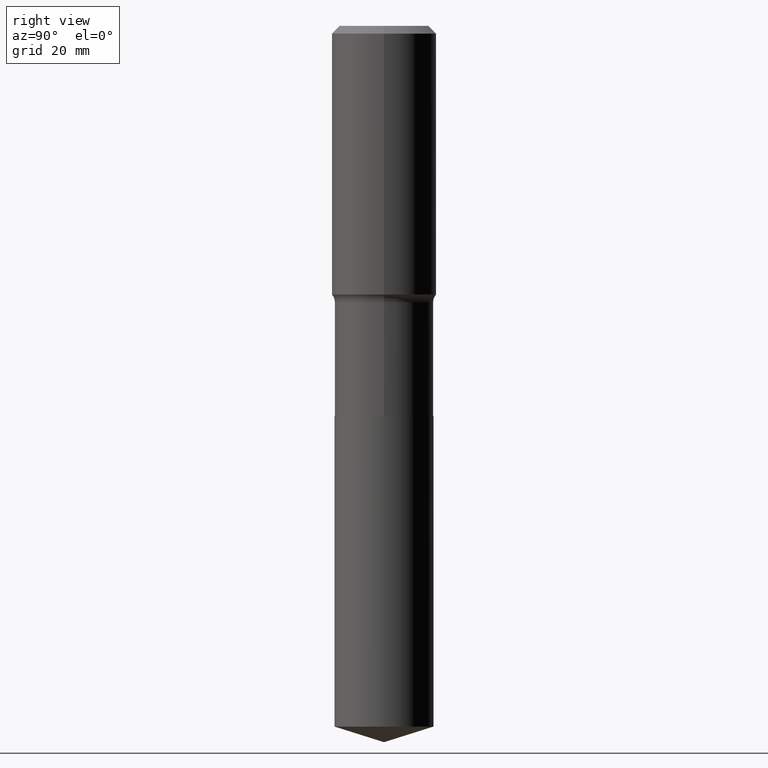
[diagram: clean part render]
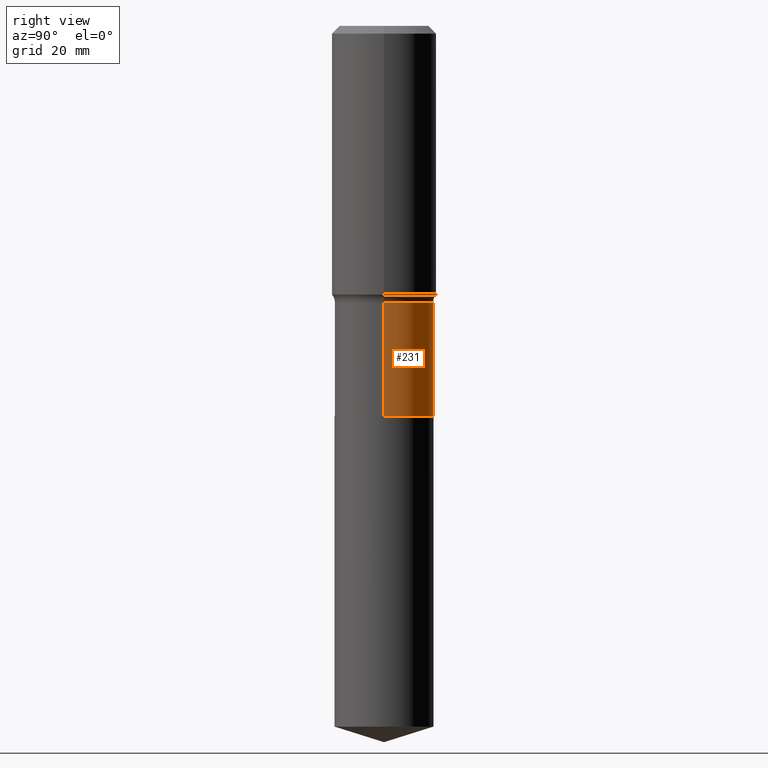
[diagram: same view with one face highlighted and labeled with its STEP entity id]
A machine part, right view. The second image highlights one B-rep face of the part: STEP entity #231.
In plain terms, the highlighted cylindrical surface (partial cylindrical patch) has radius 8.5001 mm, axis along (-0, 0, 1).
Its self-contained STEP definition (entity closure, byte-faithful):
#9 = CARTESIAN_POINT ( 'NONE',  ( -0.3346499999999999475, -5.487428746790776908E-15, -1.868099999999999650 ) ) ;
#29 = DIRECTION ( 'NONE',  ( -2.445468806185136877E-29, 3.491481338843145188E-15, 1.000000000000000000 ) ) ;
#35 = CIRCLE ( 'NONE', #319, 0.3346499999999999475 ) ;
#40 = EDGE_CURVE ( 'NONE', #190, #192, #125, .T. ) ;
#42 = CARTESIAN_POINT ( 'NONE',  ( 0.3346499999999999475, -2.336848460087708691E-15, 1.631812558020109519E-29 ) ) ;
#61 = CARTESIAN_POINT ( 'NONE',  ( 6.449434882552060429E-29, -9.208083734931026389E-15, -2.637299999999999756 ) ) ;
#81 = ORIENTED_EDGE ( 'NONE', *, *, #207, .T. ) ;
#92 = AXIS2_PLACEMENT_3D ( 'NONE', #99, #273, #358 ) ;
#99 = CARTESIAN_POINT ( 'NONE',  ( 0.000000000000000000, 0.000000000000000000, 0.000000000000000000 ) ) ;
#125 = LINE ( 'NONE', #42, #254 ) ;
#156 = VERTEX_POINT ( 'NONE', #9 ) ;
#164 = CARTESIAN_POINT ( 'NONE',  ( 4.568380276834452925E-29, -6.522436289092878802E-15, -1.868099999999999650 ) ) ;
#166 = CARTESIAN_POINT ( 'NONE',  ( 0.3346499999999999475, -8.859284749180587099E-15, -1.868099999999999650 ) ) ;
#170 = CARTESIAN_POINT ( 'NONE',  ( 0.3346500000000000030, -1.154493219501873547E-14, -2.637299999999999756 ) ) ;
#173 = EDGE_CURVE ( 'NONE', #192, #156, #35, .T. ) ;
#190 = VERTEX_POINT ( 'NONE', #170 ) ;
#192 = VERTEX_POINT ( 'NONE', #166 ) ;
#195 = VECTOR ( 'NONE', #29, 39.37007874015748143 ) ;
#202 = CARTESIAN_POINT ( 'NONE',  ( -0.3346500000000000030, -5.487428746790776119E-15, -2.637299999999999756 ) ) ;
#207 = EDGE_CURVE ( 'NONE', #190, #375, #407, .T. ) ;
#208 = DIRECTION ( 'NONE',  ( 1.000000000000000000, -6.982962677686266711E-15, 0.000000000000000000 ) ) ;
#220 = EDGE_LOOP ( 'NONE', ( #81, #441, #250, #451 ) ) ;
#231 = ADVANCED_FACE ( 'NONE', ( #354 ), #320, .T. ) ;
#250 = ORIENTED_EDGE ( 'NONE', *, *, #173, .F. ) ;
#254 = VECTOR ( 'NONE', #341, 39.37007874015748143 ) ;
#264 = DIRECTION ( 'NONE',  ( -2.445468806185136597E-29, 3.491481338843145583E-15, 1.000000000000000000 ) ) ;
#273 = DIRECTION ( 'NONE',  ( -2.445468806185136597E-29, 3.491481338843145583E-15, 1.000000000000000000 ) ) ;
#307 = CARTESIAN_POINT ( 'NONE',  ( -0.3346499999999999475, 2.377831265221174899E-15, -1.646121627953803670E-29 ) ) ;
#319 = AXIS2_PLACEMENT_3D ( 'NONE', #164, #471, #208 ) ;
#320 = CYLINDRICAL_SURFACE ( 'NONE', #92, 0.3346499999999999475 ) ;
#341 = DIRECTION ( 'NONE',  ( -2.445468806185136877E-29, 3.491481338843145188E-15, 1.000000000000000000 ) ) ;
#354 = FACE_OUTER_BOUND ( 'NONE', #220, .T. ) ;
#358 = DIRECTION ( 'NONE',  ( 1.000000000000000000, -6.982962677686266711E-15, 4.876176775795935232E-29 ) ) ;
#368 = EDGE_CURVE ( 'NONE', #375, #156, #411, .T. ) ;
#375 = VERTEX_POINT ( 'NONE', #202 ) ;
#390 = DIRECTION ( 'NONE',  ( 1.000000000000000000, -6.982962677686267499E-15, 0.000000000000000000 ) ) ;
#407 = CIRCLE ( 'NONE', #478, 0.3346500000000000030 ) ;
#411 = LINE ( 'NONE', #307, #195 ) ;
#441 = ORIENTED_EDGE ( 'NONE', *, *, #368, .T. ) ;
#451 = ORIENTED_EDGE ( 'NONE', *, *, #40, .F. ) ;
#471 = DIRECTION ( 'NONE',  ( -2.445468806185136597E-29, 3.491481338843145583E-15, 1.000000000000000000 ) ) ;
#478 = AXIS2_PLACEMENT_3D ( 'NONE', #61, #264, #390 ) ;